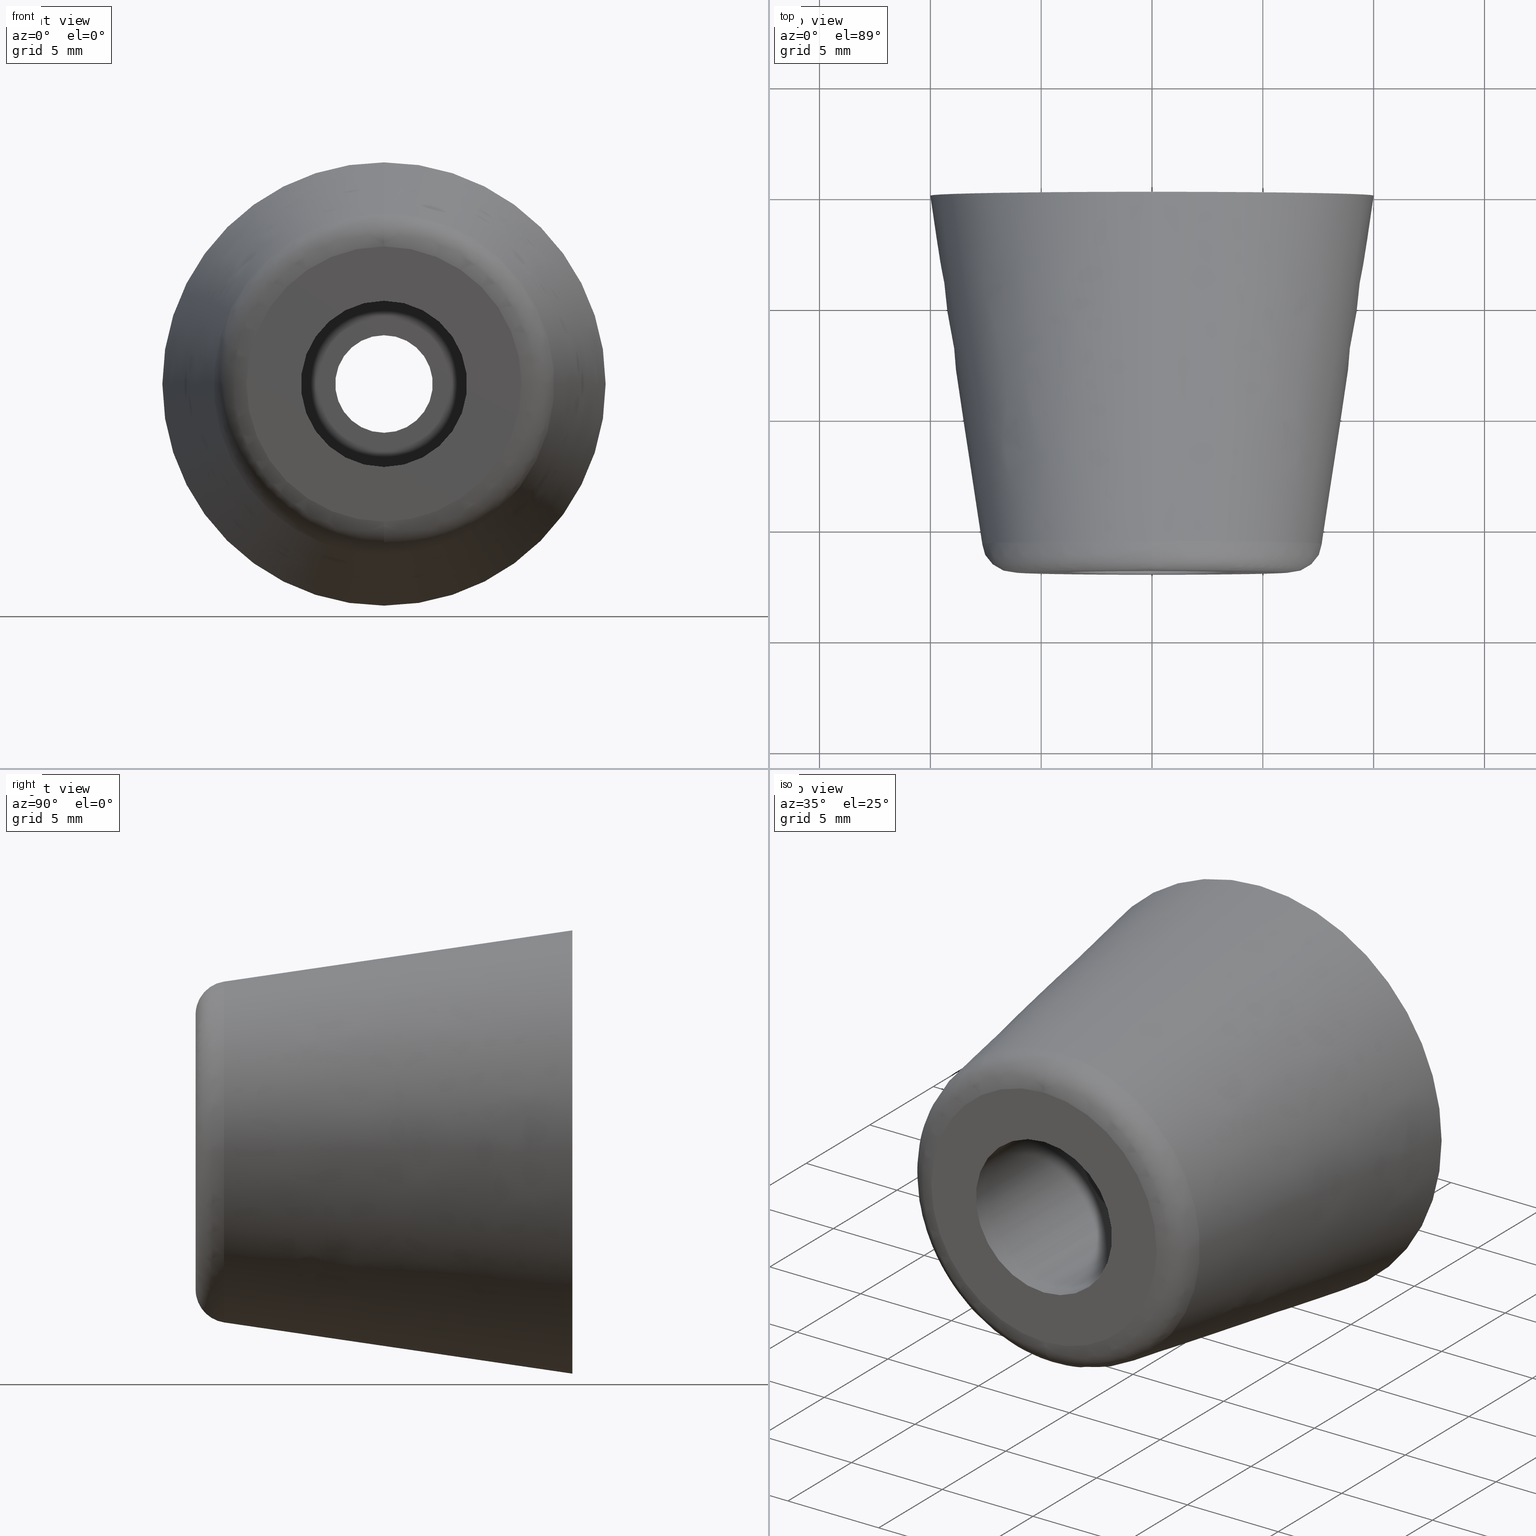
[diagram: canonical four-view strip — front | top / right | iso, engineering-drawing reading convention]
A machine part, canonical four-view strip (front | top / right | iso — engineering-drawing reading convention). The complete STEP part file that produces these views, byte-faithful:
ISO-10303-21;
HEADER;

FILE_DESCRIPTION( (''), '2;1');
FILE_NAME ('PC009.17420.TM_TP_201_27890.stp','2024-07-04T11:01:54',(''),(''),'spGate 19.8.4 (****-****-****-****)','','');

FILE_SCHEMA (('AUTOMOTIVE_DESIGN'));
ENDSEC;

DATA;
#10=(GEOMETRIC_REPRESENTATION_CONTEXT(3) GLOBAL_UNCERTAINTY_ASSIGNED_CONTEXT((#11)) GLOBAL_UNIT_ASSIGNED_CONTEXT((#12,#13,#14)) REPRESENTATION_CONTEXT('ID1','3D'));
#11=UNCERTAINTY_MEASURE_WITH_UNIT(LENGTH_MEASURE(0.01),#15,'DISTANCE_ACCURACY_VALUE','Maximum model space distance between geometric entities at asserted connectivities');
#12=(NAMED_UNIT(*) SI_UNIT($,.STERADIAN.) SOLID_ANGLE_UNIT());
#13=(CONVERSION_BASED_UNIT('DEGREE',#16) NAMED_UNIT(#17) PLANE_ANGLE_UNIT());
#14=(LENGTH_UNIT() NAMED_UNIT(*) SI_UNIT(.MILLI.,.METRE.));
#15=(LENGTH_UNIT() NAMED_UNIT(*) SI_UNIT(.MILLI.,.METRE.));
#16=PLANE_ANGLE_MEASURE_WITH_UNIT(PLANE_ANGLE_MEASURE(0.01745329252),#18);
#17=DIMENSIONAL_EXPONENTS(0.0,0.0,0.0,0.0,0.0,0.0,0.0);
#18=(NAMED_UNIT(*) PLANE_ANGLE_UNIT() SI_UNIT($,.RADIAN.));
#19=MANIFOLD_SOLID_BREP('TM_TP_201',#31);
#20=ADVANCED_BREP_SHAPE_REPRESENTATION('',(#19),#10);
#21=APPLICATION_CONTEXT('');
#22=APPLICATION_PROTOCOL_DEFINITION('International Standard','automotive_design',1999,#21);
#23=PRODUCT_DEFINITION_CONTEXT('',#21,'design');
#24=PRODUCT_CONTEXT('',#21,'mechanical');
#25=PRODUCT('','','',(#24));
#26=PRODUCT_DEFINITION_FORMATION_WITH_SPECIFIED_SOURCE('','',#25,.NOT_KNOWN.);
#27=PRODUCT_RELATED_PRODUCT_CATEGORY('tool','tool',(#25));
#28=PRODUCT_DEFINITION('','',#26,#23);
#29=PRODUCT_DEFINITION_SHAPE('','',#28);
#30=SHAPE_DEFINITION_REPRESENTATION(#29,#20);
#31=CLOSED_SHELL('',(#40,#41,#42,#43,#44,#45,#46,#47,#48,#49,#50));
#32=COLOUR_RGB('',0.00000000000E+00,0.00000000000E+00,0.00000000000E+00);
#33=FILL_AREA_STYLE_COLOUR('',#32);
#34=FILL_AREA_STYLE('',(#33));
#35=SURFACE_STYLE_FILL_AREA(#34);
#36=SURFACE_SIDE_STYLE('',(#35));
#37=SURFACE_STYLE_USAGE(.BOTH.,#36);
#38=PRESENTATION_STYLE_ASSIGNMENT((#37));
#39=STYLED_ITEM('',(#38),#19);
#40=ADVANCED_FACE('',(#52,#53),#51,.F.);
#41=ADVANCED_FACE('',(#63,#64),#62,.F.);
#42=ADVANCED_FACE('',(#74,#75),#73,.F.);
#43=ADVANCED_FACE('',(#85),#84,.F.);
#44=ADVANCED_FACE('',(#95),#94,.F.);
#45=ADVANCED_FACE('',(#105),#104,.F.);
#46=ADVANCED_FACE('',(#115),#114,.F.);
#47=ADVANCED_FACE('',(#125),#124,.T.);
#48=ADVANCED_FACE('',(#135),#134,.T.);
#49=ADVANCED_FACE('',(#145),#144,.T.);
#50=ADVANCED_FACE('',(#155),#154,.T.);
#51=PLANE('',#167);
#52=FACE_OUTER_BOUND('',#168,.T.);
#53=FACE_BOUND('',#169,.T.);
#54=COLOUR_RGB('',1.00000000000E+00,1.00000000000E+00,1.00000000000E+00);
#55=FILL_AREA_STYLE_COLOUR('',#54);
#56=FILL_AREA_STYLE('',(#55));
#57=SURFACE_STYLE_FILL_AREA(#56);
#58=SURFACE_SIDE_STYLE('',(#57));
#59=SURFACE_STYLE_USAGE(.BOTH.,#58);
#60=PRESENTATION_STYLE_ASSIGNMENT((#59));
#61=STYLED_ITEM('',(#60),#40);
#62=PLANE('',#173);
#63=FACE_OUTER_BOUND('',#174,.T.);
#64=FACE_BOUND('',#175,.T.);
#65=COLOUR_RGB('',1.00000000000E+00,1.00000000000E+00,1.00000000000E+00);
#66=FILL_AREA_STYLE_COLOUR('',#65);
#67=FILL_AREA_STYLE('',(#66));
#68=SURFACE_STYLE_FILL_AREA(#67);
#69=SURFACE_SIDE_STYLE('',(#68));
#70=SURFACE_STYLE_USAGE(.BOTH.,#69);
#71=PRESENTATION_STYLE_ASSIGNMENT((#70));
#72=STYLED_ITEM('',(#71),#41);
#73=PLANE('',#179);
#74=FACE_OUTER_BOUND('',#180,.T.);
#75=FACE_BOUND('',#181,.T.);
#76=COLOUR_RGB('',1.00000000000E+00,1.00000000000E+00,1.00000000000E+00);
#77=FILL_AREA_STYLE_COLOUR('',#76);
#78=FILL_AREA_STYLE('',(#77));
#79=SURFACE_STYLE_FILL_AREA(#78);
#80=SURFACE_SIDE_STYLE('',(#79));
#81=SURFACE_STYLE_USAGE(.BOTH.,#80);
#82=PRESENTATION_STYLE_ASSIGNMENT((#81));
#83=STYLED_ITEM('',(#82),#42);
#84=CYLINDRICAL_SURFACE('',#185,2.20000000000E+00);
#85=FACE_OUTER_BOUND('',#186,.T.);
#86=COLOUR_RGB('',1.00000000000E+00,1.00000000000E+00,1.00000000000E+00);
#87=FILL_AREA_STYLE_COLOUR('',#86);
#88=FILL_AREA_STYLE('',(#87));
#89=SURFACE_STYLE_FILL_AREA(#88);
#90=SURFACE_SIDE_STYLE('',(#89));
#91=SURFACE_STYLE_USAGE(.BOTH.,#90);
#92=PRESENTATION_STYLE_ASSIGNMENT((#91));
#93=STYLED_ITEM('',(#92),#43);
#94=CYLINDRICAL_SURFACE('',#190,2.20000000000E+00);
#95=FACE_OUTER_BOUND('',#191,.T.);
#96=COLOUR_RGB('',1.00000000000E+00,1.00000000000E+00,1.00000000000E+00);
#97=FILL_AREA_STYLE_COLOUR('',#96);
#98=FILL_AREA_STYLE('',(#97));
#99=SURFACE_STYLE_FILL_AREA(#98);
#100=SURFACE_SIDE_STYLE('',(#99));
#101=SURFACE_STYLE_USAGE(.BOTH.,#100);
#102=PRESENTATION_STYLE_ASSIGNMENT((#101));
#103=STYLED_ITEM('',(#102),#44);
#104=CYLINDRICAL_SURFACE('',#195,3.75000000000E+00);
#105=FACE_OUTER_BOUND('',#196,.T.);
#106=COLOUR_RGB('',1.00000000000E+00,1.00000000000E+00,1.00000000000E+00);
#107=FILL_AREA_STYLE_COLOUR('',#106);
#108=FILL_AREA_STYLE('',(#107));
#109=SURFACE_STYLE_FILL_AREA(#108);
#110=SURFACE_SIDE_STYLE('',(#109));
#111=SURFACE_STYLE_USAGE(.BOTH.,#110);
#112=PRESENTATION_STYLE_ASSIGNMENT((#111));
#113=STYLED_ITEM('',(#112),#45);
#114=CYLINDRICAL_SURFACE('',#200,3.75000000000E+00);
#115=FACE_OUTER_BOUND('',#201,.T.);
#116=COLOUR_RGB('',1.00000000000E+00,1.00000000000E+00,1.00000000000E+00);
#117=FILL_AREA_STYLE_COLOUR('',#116);
#118=FILL_AREA_STYLE('',(#117));
#119=SURFACE_STYLE_FILL_AREA(#118);
#120=SURFACE_SIDE_STYLE('',(#119));
#121=SURFACE_STYLE_USAGE(.BOTH.,#120);
#122=PRESENTATION_STYLE_ASSIGNMENT((#121));
#123=STYLED_ITEM('',(#122),#46);
#124=( BOUNDED_SURFACE() B_SPLINE_SURFACE( 2,2,((#202,#203,#204,#205,#206),(#207,#208,#209,#210,#211),(#212,#213,#214,#215,#216),(#217,#218,#219,#220,#221),(#222,#223,#224,#225,#226)), .UNSPECIFIED.,.F.,.F.,.F.) B_SPLINE_SURFACE_WITH_KNOTS((3,2,3),(3,2,3),(0.00000000000E+00,5.00000000000E-01,1.00000000000E+00),(0.00000000000E+00,5.00000000000E-01,1.00000000000E+00), .UNSPECIFIED. ) GEOMETRIC_REPRESENTATION_ITEM() RATIONAL_B_SPLINE_SURFACE(((1.00000000000E+00,7.56800498974E-01,1.00000000000E+00,7.56800498974E-01,1.00000000000E+00),(7.07106781187E-01,5.35138764830E-01,7.07106781187E-01,5.35138764830E-01,7.07106781187E-01),(1.00000000000E+00,7.56800498974E-01,1.00000000000E+00,7.56800498974E-01,1.00000000000E+00),(7.07106781187E-01,5.35138764830E-01,7.07106781187E-01,5.35138764830E-01,7.07106781187E-01),(1.00000000000E+00,7.56800498974E-01,1.00000000000E+00,7.56800498974E-01,1.00000000000E+00))) REPRESENTATION_ITEM('') SURFACE() );
#125=FACE_OUTER_BOUND('',#227,.T.);
#126=COLOUR_RGB('',1.00000000000E+00,1.00000000000E+00,1.00000000000E+00);
#127=FILL_AREA_STYLE_COLOUR('',#126);
#128=FILL_AREA_STYLE('',(#127));
#129=SURFACE_STYLE_FILL_AREA(#128);
#130=SURFACE_SIDE_STYLE('',(#129));
#131=SURFACE_STYLE_USAGE(.BOTH.,#130);
#132=PRESENTATION_STYLE_ASSIGNMENT((#131));
#133=STYLED_ITEM('',(#132),#47);
#134=( BOUNDED_SURFACE() B_SPLINE_SURFACE( 2,2,((#228,#229,#230,#231,#232),(#233,#234,#235,#236,#237),(#238,#239,#240,#241,#242),(#243,#244,#245,#246,#247),(#248,#249,#250,#251,#252)), .UNSPECIFIED.,.F.,.F.,.F.) B_SPLINE_SURFACE_WITH_KNOTS((3,2,3),(3,2,3),(0.00000000000E+00,5.00000000000E-01,1.00000000000E+00),(0.00000000000E+00,5.00000000000E-01,1.00000000000E+00), .UNSPECIFIED. ) GEOMETRIC_REPRESENTATION_ITEM() RATIONAL_B_SPLINE_SURFACE(((1.00000000000E+00,7.56800498974E-01,1.00000000000E+00,7.56800498974E-01,1.00000000000E+00),(7.07106781187E-01,5.35138764830E-01,7.07106781187E-01,5.35138764830E-01,7.07106781187E-01),(1.00000000000E+00,7.56800498974E-01,1.00000000000E+00,7.56800498974E-01,1.00000000000E+00),(7.07106781187E-01,5.35138764830E-01,7.07106781187E-01,5.35138764830E-01,7.07106781187E-01),(1.00000000000E+00,7.56800498974E-01,1.00000000000E+00,7.56800498974E-01,1.00000000000E+00))) REPRESENTATION_ITEM('') SURFACE() );
#135=FACE_OUTER_BOUND('',#253,.T.);
#136=COLOUR_RGB('',1.00000000000E+00,1.00000000000E+00,1.00000000000E+00);
#137=FILL_AREA_STYLE_COLOUR('',#136);
#138=FILL_AREA_STYLE('',(#137));
#139=SURFACE_STYLE_FILL_AREA(#138);
#140=SURFACE_SIDE_STYLE('',(#139));
#141=SURFACE_STYLE_USAGE(.BOTH.,#140);
#142=PRESENTATION_STYLE_ASSIGNMENT((#141));
#143=STYLED_ITEM('',(#142),#48);
#144=( BOUNDED_SURFACE() B_SPLINE_SURFACE( 2,1,((#254,#255),(#256,#257),(#258,#259),(#260,#261),(#262,#263)), .UNSPECIFIED.,.F.,.F.,.F.) B_SPLINE_SURFACE_WITH_KNOTS((3,2,3),(2,2),(0.00000000000E+00,5.00000000000E-01,1.00000000000E+00),(0.00000000000E+00,1.00000000000E+00), .UNSPECIFIED. ) GEOMETRIC_REPRESENTATION_ITEM() RATIONAL_B_SPLINE_SURFACE(((1.00000000000E+00,1.00000000000E+00),(7.07106781187E-01,7.07106781187E-01),(1.00000000000E+00,1.00000000000E+00),(7.07106781187E-01,7.07106781187E-01),(1.00000000000E+00,1.00000000000E+00))) REPRESENTATION_ITEM('') SURFACE() );
#145=FACE_OUTER_BOUND('',#264,.T.);
#146=COLOUR_RGB('',1.00000000000E+00,1.00000000000E+00,1.00000000000E+00);
#147=FILL_AREA_STYLE_COLOUR('',#146);
#148=FILL_AREA_STYLE('',(#147));
#149=SURFACE_STYLE_FILL_AREA(#148);
#150=SURFACE_SIDE_STYLE('',(#149));
#151=SURFACE_STYLE_USAGE(.BOTH.,#150);
#152=PRESENTATION_STYLE_ASSIGNMENT((#151));
#153=STYLED_ITEM('',(#152),#49);
#154=( BOUNDED_SURFACE() B_SPLINE_SURFACE( 2,1,((#265,#266),(#267,#268),(#269,#270),(#271,#272),(#273,#274)), .UNSPECIFIED.,.F.,.F.,.F.) B_SPLINE_SURFACE_WITH_KNOTS((3,2,3),(2,2),(0.00000000000E+00,5.00000000000E-01,1.00000000000E+00),(0.00000000000E+00,1.00000000000E+00), .UNSPECIFIED. ) GEOMETRIC_REPRESENTATION_ITEM() RATIONAL_B_SPLINE_SURFACE(((1.00000000000E+00,1.00000000000E+00),(7.07106781187E-01,7.07106781187E-01),(1.00000000000E+00,1.00000000000E+00),(7.07106781187E-01,7.07106781187E-01),(1.00000000000E+00,1.00000000000E+00))) REPRESENTATION_ITEM('') SURFACE() );
#155=FACE_OUTER_BOUND('',#275,.T.);
#156=COLOUR_RGB('',1.00000000000E+00,1.00000000000E+00,1.00000000000E+00);
#157=FILL_AREA_STYLE_COLOUR('',#156);
#158=FILL_AREA_STYLE('',(#157));
#159=SURFACE_STYLE_FILL_AREA(#158);
#160=SURFACE_SIDE_STYLE('',(#159));
#161=SURFACE_STYLE_USAGE(.BOTH.,#160);
#162=PRESENTATION_STYLE_ASSIGNMENT((#161));
#163=STYLED_ITEM('',(#162),#50);
#164=CARTESIAN_POINT('',(-7.79422863406E+00,-9.00000000000E+00,-4.87500000000E+00));
#165=DIRECTION('',(0.00000000000E+00,1.00000000000E+00,0.00000000000E+00));
#166=DIRECTION('',(0.00000000000E+00,-0.00000000000E+00,1.00000000000E+00));
#167=AXIS2_PLACEMENT_3D('',#164,#165,#166);
#168=EDGE_LOOP('',(#276,#277));
#169=EDGE_LOOP('',(#278,#279));
#170=CARTESIAN_POINT('',(-1.28957181124E+01,-1.70000000000E+01,-8.06579185053E+00));
#171=DIRECTION('',(0.00000000000E+00,1.00000000000E+00,0.00000000000E+00));
#172=DIRECTION('',(0.00000000000E+00,-0.00000000000E+00,1.00000000000E+00));
#173=AXIS2_PLACEMENT_3D('',#170,#171,#172);
#174=EDGE_LOOP('',(#280,#281));
#175=EDGE_LOOP('',(#282,#283));
#176=CARTESIAN_POINT('',(-2.07846096908E+01,0.00000000000E+00,2.30000000000E+01));
#177=DIRECTION('',(0.00000000000E+00,-1.00000000000E+00,-0.00000000000E+00));
#178=DIRECTION('',(0.00000000000E+00,0.00000000000E+00,-1.00000000000E+00));
#179=AXIS2_PLACEMENT_3D('',#176,#177,#178);
#180=EDGE_LOOP('',(#284,#285));
#181=EDGE_LOOP('',(#286,#287));
#182=CARTESIAN_POINT('',(1.06581410364E-14,0.00000000000E+00,0.00000000000E+00));
#183=DIRECTION('',(-0.00000000000E+00,1.00000000000E+00,0.00000000000E+00));
#184=DIRECTION('',(-0.00000000000E+00,-0.00000000000E+00,1.00000000000E+00));
#185=AXIS2_PLACEMENT_3D('',#182,#183,#184);
#186=EDGE_LOOP('',(#288,#289,#290,#291));
#187=CARTESIAN_POINT('',(1.06581410364E-14,0.00000000000E+00,0.00000000000E+00));
#188=DIRECTION('',(-0.00000000000E+00,1.00000000000E+00,0.00000000000E+00));
#189=DIRECTION('',(-0.00000000000E+00,-0.00000000000E+00,1.00000000000E+00));
#190=AXIS2_PLACEMENT_3D('',#187,#188,#189);
#191=EDGE_LOOP('',(#292,#293,#294,#295));
#192=CARTESIAN_POINT('',(1.06581410364E-14,0.00000000000E+00,0.00000000000E+00));
#193=DIRECTION('',(-0.00000000000E+00,1.00000000000E+00,0.00000000000E+00));
#194=DIRECTION('',(-0.00000000000E+00,-0.00000000000E+00,1.00000000000E+00));
#195=AXIS2_PLACEMENT_3D('',#192,#193,#194);
#196=EDGE_LOOP('',(#296,#297,#298,#299));
#197=CARTESIAN_POINT('',(1.06581410364E-14,0.00000000000E+00,0.00000000000E+00));
#198=DIRECTION('',(-0.00000000000E+00,1.00000000000E+00,0.00000000000E+00));
#199=DIRECTION('',(-0.00000000000E+00,-0.00000000000E+00,1.00000000000E+00));
#200=AXIS2_PLACEMENT_3D('',#197,#198,#199);
#201=EDGE_LOOP('',(#300,#301,#302,#303));
#202=CARTESIAN_POINT('',(9.46680299883E-15,-1.57182409857E+01,7.68849397268E+00));
#203=CARTESIAN_POINT('',(9.48988609049E-15,-1.70000000000E+01,7.50000000000E+00));
#204=CARTESIAN_POINT('',(9.64853932134E-15,-1.70000000000E+01,6.20445526964E+00));
#205=CARTESIAN_POINT('',(9.80719255219E-15,-1.70000000000E+01,4.90891053928E+00));
#206=CARTESIAN_POINT('',(9.83027564385E-15,-1.57182409857E+01,4.72041656659E+00));
#207=CARTESIAN_POINT('',(-7.68849397268E+00,-1.57182409857E+01,7.68849397268E+00));
#208=CARTESIAN_POINT('',(-7.50000000000E+00,-1.70000000000E+01,7.50000000000E+00));
#209=CARTESIAN_POINT('',(-6.20445526964E+00,-1.70000000000E+01,6.20445526964E+00));
#210=CARTESIAN_POINT('',(-4.90891053928E+00,-1.70000000000E+01,4.90891053928E+00));
#211=CARTESIAN_POINT('',(-4.72041656659E+00,-1.57182409857E+01,4.72041656659E+00));
#212=CARTESIAN_POINT('',(-7.68849397268E+00,-1.57182409857E+01,-4.70753380332E-16));
#213=CARTESIAN_POINT('',(-7.50000000000E+00,-1.70000000000E+01,-4.59212215687E-16));
#214=CARTESIAN_POINT('',(-6.20445526964E+00,-1.70000000000E+01,-3.79888220200E-16));
#215=CARTESIAN_POINT('',(-4.90891053928E+00,-1.70000000000E+01,-3.00564224713E-16));
#216=CARTESIAN_POINT('',(-4.72041656659E+00,-1.57182409857E+01,-2.89023060068E-16));
#217=CARTESIAN_POINT('',(-7.68849397268E+00,-1.57182409857E+01,-7.68849397268E+00));
#218=CARTESIAN_POINT('',(-7.50000000000E+00,-1.70000000000E+01,-7.50000000000E+00));
#219=CARTESIAN_POINT('',(-6.20445526964E+00,-1.70000000000E+01,-6.20445526964E+00));
#220=CARTESIAN_POINT('',(-4.90891053928E+00,-1.70000000000E+01,-4.90891053928E+00));
#221=CARTESIAN_POINT('',(-4.72041656659E+00,-1.57182409857E+01,-4.72041656659E+00));
#222=CARTESIAN_POINT('',(1.04083097595E-14,-1.57182409857E+01,-7.68849397268E+00));
#223=CARTESIAN_POINT('',(1.04083105219E-14,-1.70000000000E+01,-7.50000000000E+00));
#224=CARTESIAN_POINT('',(1.04083157617E-14,-1.70000000000E+01,-6.20445526964E+00));
#225=CARTESIAN_POINT('',(1.04083210016E-14,-1.70000000000E+01,-4.90891053928E+00));
#226=CARTESIAN_POINT('',(1.04083217640E-14,-1.57182409857E+01,-4.72041656659E+00));
#227=EDGE_LOOP('',(#304,#305,#306,#307));
#228=CARTESIAN_POINT('',(1.04083097595E-14,-1.57182409857E+01,-7.68849397268E+00));
#229=CARTESIAN_POINT('',(1.04083105219E-14,-1.70000000000E+01,-7.50000000000E+00));
#230=CARTESIAN_POINT('',(1.04083157617E-14,-1.70000000000E+01,-6.20445526964E+00));
#231=CARTESIAN_POINT('',(1.04083210016E-14,-1.70000000000E+01,-4.90891053928E+00));
#232=CARTESIAN_POINT('',(1.04083217640E-14,-1.57182409857E+01,-4.72041656659E+00));
#233=CARTESIAN_POINT('',(7.68849397268E+00,-1.57182409857E+01,-7.68849397268E+00));
#234=CARTESIAN_POINT('',(7.50000000000E+00,-1.70000000000E+01,-7.50000000000E+00));
#235=CARTESIAN_POINT('',(6.20445526964E+00,-1.70000000000E+01,-6.20445526964E+00));
#236=CARTESIAN_POINT('',(4.90891053928E+00,-1.70000000000E+01,-4.90891053928E+00));
#237=CARTESIAN_POINT('',(4.72041656659E+00,-1.57182409857E+01,-4.72041656659E+00));
#238=CARTESIAN_POINT('',(7.68849397268E+00,-1.57182409857E+01,-4.70815573059E-16));
#239=CARTESIAN_POINT('',(7.50000000000E+00,-1.70000000000E+01,-4.59272883674E-16));
#240=CARTESIAN_POINT('',(6.20445526964E+00,-1.70000000000E+01,-3.79938408442E-16));
#241=CARTESIAN_POINT('',(4.90891053928E+00,-1.70000000000E+01,-3.00603933209E-16));
#242=CARTESIAN_POINT('',(4.72041656659E+00,-1.57182409857E+01,-2.89061243824E-16));
#243=CARTESIAN_POINT('',(7.68849397268E+00,-1.57182409857E+01,7.68849397268E+00));
#244=CARTESIAN_POINT('',(7.50000000000E+00,-1.70000000000E+01,7.50000000000E+00));
#245=CARTESIAN_POINT('',(6.20445526964E+00,-1.70000000000E+01,6.20445526964E+00));
#246=CARTESIAN_POINT('',(4.90891053928E+00,-1.70000000000E+01,4.90891053928E+00));
#247=CARTESIAN_POINT('',(4.72041656659E+00,-1.57182409857E+01,4.72041656659E+00));
#248=CARTESIAN_POINT('',(1.13499409056E-14,-1.57182409857E+01,7.68849397268E+00));
#249=CARTESIAN_POINT('',(1.13268562892E-14,-1.70000000000E+01,7.50000000000E+00));
#250=CARTESIAN_POINT('',(1.11681925786E-14,-1.70000000000E+01,6.20445526964E+00));
#251=CARTESIAN_POINT('',(1.10095288680E-14,-1.70000000000E+01,4.90891053928E+00));
#252=CARTESIAN_POINT('',(1.09864442516E-14,-1.57182409857E+01,4.72041656659E+00));
#253=EDGE_LOOP('',(#308,#309,#310,#311));
#254=CARTESIAN_POINT('',(8.77500312962E-15,-1.57182409857E+01,-7.68849397268E+00));
#255=CARTESIAN_POINT('',(8.20884743811E-15,0.00000000000E+00,-1.00000000000E+01));
#256=CARTESIAN_POINT('',(-7.68849397268E+00,-1.57182409857E+01,-7.68849397268E+00));
#257=CARTESIAN_POINT('',(-1.00000000000E+01,0.00000000000E+00,-1.00000000000E+01));
#258=CARTESIAN_POINT('',(-7.68849397268E+00,-1.57182409857E+01,1.41235343009E-15));
#259=CARTESIAN_POINT('',(-1.00000000000E+01,0.00000000000E+00,1.83697019872E-15));
#260=CARTESIAN_POINT('',(-7.68849397268E+00,-1.57182409857E+01,7.68849397268E+00));
#261=CARTESIAN_POINT('',(-1.00000000000E+01,0.00000000000E+00,1.00000000000E+01));
#262=CARTESIAN_POINT('',(1.15997099898E-14,-1.57182409857E+01,7.68849397268E+00));
#263=CARTESIAN_POINT('',(1.18827878355E-14,0.00000000000E+00,1.00000000000E+01));
#264=EDGE_LOOP('',(#312,#313,#314,#315));
#265=CARTESIAN_POINT('',(1.15997099898E-14,-1.57182409857E+01,7.68849397268E+00));
#266=CARTESIAN_POINT('',(1.18827878355E-14,0.00000000000E+00,1.00000000000E+01));
#267=CARTESIAN_POINT('',(7.68849397268E+00,-1.57182409857E+01,7.68849397268E+00));
#268=CARTESIAN_POINT('',(1.00000000000E+01,0.00000000000E+00,1.00000000000E+01));
#269=CARTESIAN_POINT('',(7.68849397268E+00,-1.57182409857E+01,-4.70784476696E-16));
#270=CARTESIAN_POINT('',(1.00000000000E+01,0.00000000000E+00,-6.12323399574E-16));
#271=CARTESIAN_POINT('',(7.68849397268E+00,-1.57182409857E+01,-7.68849397268E+00));
#272=CARTESIAN_POINT('',(1.00000000000E+01,0.00000000000E+00,-1.00000000000E+01));
#273=CARTESIAN_POINT('',(1.06581410364E-14,-1.57182409857E+01,-7.68849397268E+00));
#274=CARTESIAN_POINT('',(1.06581410364E-14,0.00000000000E+00,-1.00000000000E+01));
#275=EDGE_LOOP('',(#316,#317,#318,#319));
#276=ORIENTED_EDGE('',*,*,#320,.T.);
#277=ORIENTED_EDGE('',*,*,#321,.T.);
#278=ORIENTED_EDGE('',*,*,#322,.F.);
#279=ORIENTED_EDGE('',*,*,#323,.F.);
#280=ORIENTED_EDGE('',*,*,#324,.T.);
#281=ORIENTED_EDGE('',*,*,#325,.T.);
#282=ORIENTED_EDGE('',*,*,#326,.F.);
#283=ORIENTED_EDGE('',*,*,#327,.F.);
#284=ORIENTED_EDGE('',*,*,#328,.F.);
#285=ORIENTED_EDGE('',*,*,#329,.F.);
#286=ORIENTED_EDGE('',*,*,#330,.T.);
#287=ORIENTED_EDGE('',*,*,#331,.T.);
#288=ORIENTED_EDGE('',*,*,#323,.T.);
#289=ORIENTED_EDGE('',*,*,#332,.T.);
#290=ORIENTED_EDGE('',*,*,#330,.F.);
#291=ORIENTED_EDGE('',*,*,#333,.F.);
#292=ORIENTED_EDGE('',*,*,#331,.F.);
#293=ORIENTED_EDGE('',*,*,#332,.F.);
#294=ORIENTED_EDGE('',*,*,#322,.T.);
#295=ORIENTED_EDGE('',*,*,#333,.T.);
#296=ORIENTED_EDGE('',*,*,#327,.T.);
#297=ORIENTED_EDGE('',*,*,#334,.T.);
#298=ORIENTED_EDGE('',*,*,#320,.F.);
#299=ORIENTED_EDGE('',*,*,#335,.F.);
#300=ORIENTED_EDGE('',*,*,#321,.F.);
#301=ORIENTED_EDGE('',*,*,#334,.F.);
#302=ORIENTED_EDGE('',*,*,#326,.T.);
#303=ORIENTED_EDGE('',*,*,#335,.T.);
#304=ORIENTED_EDGE('',*,*,#325,.F.);
#305=ORIENTED_EDGE('',*,*,#336,.F.);
#306=ORIENTED_EDGE('',*,*,#337,.T.);
#307=ORIENTED_EDGE('',*,*,#338,.T.);
#308=ORIENTED_EDGE('',*,*,#339,.T.);
#309=ORIENTED_EDGE('',*,*,#336,.T.);
#310=ORIENTED_EDGE('',*,*,#324,.F.);
#311=ORIENTED_EDGE('',*,*,#338,.F.);
#312=ORIENTED_EDGE('',*,*,#328,.T.);
#313=ORIENTED_EDGE('',*,*,#340,.F.);
#314=ORIENTED_EDGE('',*,*,#337,.F.);
#315=ORIENTED_EDGE('',*,*,#341,.T.);
#316=ORIENTED_EDGE('',*,*,#339,.F.);
#317=ORIENTED_EDGE('',*,*,#340,.T.);
#318=ORIENTED_EDGE('',*,*,#329,.T.);
#319=ORIENTED_EDGE('',*,*,#341,.F.);
#320=EDGE_CURVE('',#342,#343,#344,.T.);
#321=EDGE_CURVE('',#343,#342,#350,.T.);
#322=EDGE_CURVE('',#356,#357,#358,.T.);
#323=EDGE_CURVE('',#357,#356,#364,.T.);
#324=EDGE_CURVE('',#370,#371,#372,.T.);
#325=EDGE_CURVE('',#371,#370,#378,.T.);
#326=EDGE_CURVE('',#384,#385,#386,.T.);
#327=EDGE_CURVE('',#385,#384,#392,.T.);
#328=EDGE_CURVE('',#398,#399,#400,.T.);
#329=EDGE_CURVE('',#399,#398,#406,.T.);
#330=EDGE_CURVE('',#412,#413,#414,.T.);
#331=EDGE_CURVE('',#413,#412,#420,.T.);
#332=EDGE_CURVE('',#356,#413,#426,.T.);
#333=EDGE_CURVE('',#357,#412,#432,.T.);
#334=EDGE_CURVE('',#384,#343,#438,.T.);
#335=EDGE_CURVE('',#385,#342,#444,.T.);
#336=EDGE_CURVE('',#450,#371,#451,.T.);
#337=EDGE_CURVE('',#450,#457,#458,.T.);
#338=EDGE_CURVE('',#457,#370,#464,.T.);
#339=EDGE_CURVE('',#457,#450,#470,.T.);
#340=EDGE_CURVE('',#457,#399,#476,.T.);
#341=EDGE_CURVE('',#450,#398,#482,.T.);
#342=VERTEX_POINT('',#488);
#343=VERTEX_POINT('',#489);
#344=CIRCLE('',#493,3.75000000000E+00);
#345=COLOUR_RGB('',1.00000000000E+00,1.00000000000E+00,1.00000000000E+00);
#346=DRAUGHTING_PRE_DEFINED_CURVE_FONT('continuous');
#347=CURVE_STYLE( '',#346, POSITIVE_LENGTH_MEASURE(1.00000000000E-06),#345);
#348=PRESENTATION_STYLE_ASSIGNMENT((#347));
#349=STYLED_ITEM('',(#348),#320);
#350=CIRCLE('',#497,3.75000000000E+00);
#351=COLOUR_RGB('',1.00000000000E+00,1.00000000000E+00,1.00000000000E+00);
#352=DRAUGHTING_PRE_DEFINED_CURVE_FONT('continuous');
#353=CURVE_STYLE( '',#352, POSITIVE_LENGTH_MEASURE(1.00000000000E-06),#351);
#354=PRESENTATION_STYLE_ASSIGNMENT((#353));
#355=STYLED_ITEM('',(#354),#321);
#356=VERTEX_POINT('',#498);
#357=VERTEX_POINT('',#499);
#358=CIRCLE('',#503,2.20000000000E+00);
#359=COLOUR_RGB('',1.00000000000E+00,1.00000000000E+00,1.00000000000E+00);
#360=DRAUGHTING_PRE_DEFINED_CURVE_FONT('continuous');
#361=CURVE_STYLE( '',#360, POSITIVE_LENGTH_MEASURE(1.00000000000E-06),#359);
#362=PRESENTATION_STYLE_ASSIGNMENT((#361));
#363=STYLED_ITEM('',(#362),#322);
#364=CIRCLE('',#507,2.20000000000E+00);
#365=COLOUR_RGB('',1.00000000000E+00,1.00000000000E+00,1.00000000000E+00);
#366=DRAUGHTING_PRE_DEFINED_CURVE_FONT('continuous');
#367=CURVE_STYLE( '',#366, POSITIVE_LENGTH_MEASURE(1.00000000000E-06),#365);
#368=PRESENTATION_STYLE_ASSIGNMENT((#367));
#369=STYLED_ITEM('',(#368),#323);
#370=VERTEX_POINT('',#508);
#371=VERTEX_POINT('',#509);
#372=CIRCLE('',#513,6.20445526964E+00);
#373=COLOUR_RGB('',1.00000000000E+00,1.00000000000E+00,1.00000000000E+00);
#374=DRAUGHTING_PRE_DEFINED_CURVE_FONT('continuous');
#375=CURVE_STYLE( '',#374, POSITIVE_LENGTH_MEASURE(1.00000000000E-06),#373);
#376=PRESENTATION_STYLE_ASSIGNMENT((#375));
#377=STYLED_ITEM('',(#376),#324);
#378=CIRCLE('',#517,6.20445526964E+00);
#379=COLOUR_RGB('',1.00000000000E+00,1.00000000000E+00,1.00000000000E+00);
#380=DRAUGHTING_PRE_DEFINED_CURVE_FONT('continuous');
#381=CURVE_STYLE( '',#380, POSITIVE_LENGTH_MEASURE(1.00000000000E-06),#379);
#382=PRESENTATION_STYLE_ASSIGNMENT((#381));
#383=STYLED_ITEM('',(#382),#325);
#384=VERTEX_POINT('',#518);
#385=VERTEX_POINT('',#519);
#386=CIRCLE('',#523,3.75000000000E+00);
#387=COLOUR_RGB('',1.00000000000E+00,1.00000000000E+00,1.00000000000E+00);
#388=DRAUGHTING_PRE_DEFINED_CURVE_FONT('continuous');
#389=CURVE_STYLE( '',#388, POSITIVE_LENGTH_MEASURE(1.00000000000E-06),#387);
#390=PRESENTATION_STYLE_ASSIGNMENT((#389));
#391=STYLED_ITEM('',(#390),#326);
#392=CIRCLE('',#527,3.75000000000E+00);
#393=COLOUR_RGB('',1.00000000000E+00,1.00000000000E+00,1.00000000000E+00);
#394=DRAUGHTING_PRE_DEFINED_CURVE_FONT('continuous');
#395=CURVE_STYLE( '',#394, POSITIVE_LENGTH_MEASURE(1.00000000000E-06),#393);
#396=PRESENTATION_STYLE_ASSIGNMENT((#395));
#397=STYLED_ITEM('',(#396),#327);
#398=VERTEX_POINT('',#528);
#399=VERTEX_POINT('',#529);
#400=CIRCLE('',#533,1.00000000000E+01);
#401=COLOUR_RGB('',1.00000000000E+00,1.00000000000E+00,1.00000000000E+00);
#402=DRAUGHTING_PRE_DEFINED_CURVE_FONT('continuous');
#403=CURVE_STYLE( '',#402, POSITIVE_LENGTH_MEASURE(1.00000000000E-06),#401);
#404=PRESENTATION_STYLE_ASSIGNMENT((#403));
#405=STYLED_ITEM('',(#404),#328);
#406=CIRCLE('',#537,1.00000000000E+01);
#407=COLOUR_RGB('',1.00000000000E+00,1.00000000000E+00,1.00000000000E+00);
#408=DRAUGHTING_PRE_DEFINED_CURVE_FONT('continuous');
#409=CURVE_STYLE( '',#408, POSITIVE_LENGTH_MEASURE(1.00000000000E-06),#407);
#410=PRESENTATION_STYLE_ASSIGNMENT((#409));
#411=STYLED_ITEM('',(#410),#329);
#412=VERTEX_POINT('',#538);
#413=VERTEX_POINT('',#539);
#414=CIRCLE('',#543,2.20000000000E+00);
#415=COLOUR_RGB('',1.00000000000E+00,1.00000000000E+00,1.00000000000E+00);
#416=DRAUGHTING_PRE_DEFINED_CURVE_FONT('continuous');
#417=CURVE_STYLE( '',#416, POSITIVE_LENGTH_MEASURE(1.00000000000E-06),#415);
#418=PRESENTATION_STYLE_ASSIGNMENT((#417));
#419=STYLED_ITEM('',(#418),#330);
#420=CIRCLE('',#547,2.20000000000E+00);
#421=COLOUR_RGB('',1.00000000000E+00,1.00000000000E+00,1.00000000000E+00);
#422=DRAUGHTING_PRE_DEFINED_CURVE_FONT('continuous');
#423=CURVE_STYLE( '',#422, POSITIVE_LENGTH_MEASURE(1.00000000000E-06),#421);
#424=PRESENTATION_STYLE_ASSIGNMENT((#423));
#425=STYLED_ITEM('',(#424),#331);
#426=(BOUNDED_CURVE() B_SPLINE_CURVE(1,(#548,#549),.UNSPECIFIED.,.F.,.F.) B_SPLINE_CURVE_WITH_KNOTS((2,2),(8.33333343261E-02,9.16666664274E-01),.UNSPECIFIED.) CURVE() GEOMETRIC_REPRESENTATION_ITEM() RATIONAL_B_SPLINE_CURVE((1.00000000000E+00,1.00000000000E+00)) REPRESENTATION_ITEM('') );
#427=COLOUR_RGB('',1.00000000000E+00,1.00000000000E+00,1.00000000000E+00);
#428=DRAUGHTING_PRE_DEFINED_CURVE_FONT('continuous');
#429=CURVE_STYLE( '',#428, POSITIVE_LENGTH_MEASURE(1.00000000000E-06),#427);
#430=PRESENTATION_STYLE_ASSIGNMENT((#429));
#431=STYLED_ITEM('',(#430),#332);
#432=(BOUNDED_CURVE() B_SPLINE_CURVE(1,(#550,#551),.UNSPECIFIED.,.F.,.F.) B_SPLINE_CURVE_WITH_KNOTS((2,2),(8.33333333333E-02,9.16666666667E-01),.UNSPECIFIED.) CURVE() GEOMETRIC_REPRESENTATION_ITEM() RATIONAL_B_SPLINE_CURVE((7.50000000000E-01,7.50000000000E-01)) REPRESENTATION_ITEM('') );
#433=COLOUR_RGB('',1.00000000000E+00,1.00000000000E+00,1.00000000000E+00);
#434=DRAUGHTING_PRE_DEFINED_CURVE_FONT('continuous');
#435=CURVE_STYLE( '',#434, POSITIVE_LENGTH_MEASURE(1.00000000000E-06),#433);
#436=PRESENTATION_STYLE_ASSIGNMENT((#435));
#437=STYLED_ITEM('',(#436),#333);
#438=(BOUNDED_CURVE() B_SPLINE_CURVE(1,(#552,#553),.UNSPECIFIED.,.F.,.F.) B_SPLINE_CURVE_WITH_KNOTS((2,2),(8.33333366442E-02,9.16666667899E-01),.UNSPECIFIED.) CURVE() GEOMETRIC_REPRESENTATION_ITEM() RATIONAL_B_SPLINE_CURVE((1.00000000000E+00,1.00000000000E+00)) REPRESENTATION_ITEM('') );
#439=COLOUR_RGB('',1.00000000000E+00,1.00000000000E+00,1.00000000000E+00);
#440=DRAUGHTING_PRE_DEFINED_CURVE_FONT('continuous');
#441=CURVE_STYLE( '',#440, POSITIVE_LENGTH_MEASURE(1.00000000000E-06),#439);
#442=PRESENTATION_STYLE_ASSIGNMENT((#441));
#443=STYLED_ITEM('',(#442),#334);
#444=(BOUNDED_CURVE() B_SPLINE_CURVE(1,(#554,#555),.UNSPECIFIED.,.F.,.F.) B_SPLINE_CURVE_WITH_KNOTS((2,2),(8.33333333333E-02,9.16666666667E-01),.UNSPECIFIED.) CURVE() GEOMETRIC_REPRESENTATION_ITEM() RATIONAL_B_SPLINE_CURVE((7.50000000000E-01,7.50000000000E-01)) REPRESENTATION_ITEM('') );
#445=COLOUR_RGB('',1.00000000000E+00,1.00000000000E+00,1.00000000000E+00);
#446=DRAUGHTING_PRE_DEFINED_CURVE_FONT('continuous');
#447=CURVE_STYLE( '',#446, POSITIVE_LENGTH_MEASURE(1.00000000000E-06),#445);
#448=PRESENTATION_STYLE_ASSIGNMENT((#447));
#449=STYLED_ITEM('',(#448),#335);
#450=VERTEX_POINT('',#556);
#451=(BOUNDED_CURVE() B_SPLINE_CURVE(2,(#557,#558,#559),.UNSPECIFIED.,.F.,.F.) B_SPLINE_CURVE_WITH_KNOTS((3,3),(0.00000000000E+00,5.00000000000E-01),.UNSPECIFIED.) CURVE() GEOMETRIC_REPRESENTATION_ITEM() RATIONAL_B_SPLINE_CURVE((1.00000000000E+00,7.56800498974E-01,1.00000000000E+00)) REPRESENTATION_ITEM('') );
#452=COLOUR_RGB('',1.00000000000E+00,1.00000000000E+00,1.00000000000E+00);
#453=DRAUGHTING_PRE_DEFINED_CURVE_FONT('continuous');
#454=CURVE_STYLE( '',#453, POSITIVE_LENGTH_MEASURE(1.00000000000E-06),#452);
#455=PRESENTATION_STYLE_ASSIGNMENT((#454));
#456=STYLED_ITEM('',(#455),#336);
#457=VERTEX_POINT('',#560);
#458=CIRCLE('',#564,7.68849397268E+00);
#459=COLOUR_RGB('',1.00000000000E+00,1.00000000000E+00,1.00000000000E+00);
#460=DRAUGHTING_PRE_DEFINED_CURVE_FONT('continuous');
#461=CURVE_STYLE( '',#460, POSITIVE_LENGTH_MEASURE(1.00000000000E-06),#459);
#462=PRESENTATION_STYLE_ASSIGNMENT((#461));
#463=STYLED_ITEM('',(#462),#337);
#464=(BOUNDED_CURVE() B_SPLINE_CURVE(3,(#565,#566,#567,#568,#569),.UNSPECIFIED.,.F.,.F.) B_SPLINE_CURVE_WITH_KNOTS((4,1,4),(0.00000000000E+00,2.50000002718E-01,5.00000004832E-01),.UNSPECIFIED.) CURVE() GEOMETRIC_REPRESENTATION_ITEM() RATIONAL_B_SPLINE_CURVE((1.00000000000E+00,1.00000000000E+00,1.00000000000E+00,1.00000000000E+00,1.00000000000E+00)) REPRESENTATION_ITEM('') );
#465=COLOUR_RGB('',1.00000000000E+00,1.00000000000E+00,1.00000000000E+00);
#466=DRAUGHTING_PRE_DEFINED_CURVE_FONT('continuous');
#467=CURVE_STYLE( '',#466, POSITIVE_LENGTH_MEASURE(1.00000000000E-06),#465);
#468=PRESENTATION_STYLE_ASSIGNMENT((#467));
#469=STYLED_ITEM('',(#468),#338);
#470=CIRCLE('',#573,7.68849397268E+00);
#471=COLOUR_RGB('',1.00000000000E+00,1.00000000000E+00,1.00000000000E+00);
#472=DRAUGHTING_PRE_DEFINED_CURVE_FONT('continuous');
#473=CURVE_STYLE( '',#472, POSITIVE_LENGTH_MEASURE(1.00000000000E-06),#471);
#474=PRESENTATION_STYLE_ASSIGNMENT((#473));
#475=STYLED_ITEM('',(#474),#339);
#476=(BOUNDED_CURVE() B_SPLINE_CURVE(1,(#574,#575),.UNSPECIFIED.,.F.,.F.) B_SPLINE_CURVE_WITH_KNOTS((2,2),(0.00000000000E+00,1.00000000000E+00),.UNSPECIFIED.) CURVE() GEOMETRIC_REPRESENTATION_ITEM() RATIONAL_B_SPLINE_CURVE((1.00000000000E+00,1.00000000000E+00)) REPRESENTATION_ITEM('') );
#477=COLOUR_RGB('',1.00000000000E+00,1.00000000000E+00,1.00000000000E+00);
#478=DRAUGHTING_PRE_DEFINED_CURVE_FONT('continuous');
#479=CURVE_STYLE( '',#478, POSITIVE_LENGTH_MEASURE(1.00000000000E-06),#477);
#480=PRESENTATION_STYLE_ASSIGNMENT((#479));
#481=STYLED_ITEM('',(#480),#340);
#482=(BOUNDED_CURVE() B_SPLINE_CURVE(1,(#576,#577),.UNSPECIFIED.,.F.,.F.) B_SPLINE_CURVE_WITH_KNOTS((2,2),(0.00000000000E+00,1.00000000000E+00),.UNSPECIFIED.) CURVE() GEOMETRIC_REPRESENTATION_ITEM() RATIONAL_B_SPLINE_CURVE((7.50000000000E-01,7.50000000000E-01)) REPRESENTATION_ITEM('') );
#483=COLOUR_RGB('',1.00000000000E+00,1.00000000000E+00,1.00000000000E+00);
#484=DRAUGHTING_PRE_DEFINED_CURVE_FONT('continuous');
#485=CURVE_STYLE( '',#484, POSITIVE_LENGTH_MEASURE(1.00000000000E-06),#483);
#486=PRESENTATION_STYLE_ASSIGNMENT((#485));
#487=STYLED_ITEM('',(#486),#341);
#488=CARTESIAN_POINT('',(1.06581410364E-14,-9.00000000000E+00,-3.75000000000E+00));
#489=CARTESIAN_POINT('',(1.11022302463E-14,-9.00000000000E+00,3.75000000000E+00));
#490=CARTESIAN_POINT('',(1.06581410364E-14,-9.00000000000E+00,0.00000000000E+00));
#491=DIRECTION('',(0.00000000000E+00,-1.00000000000E+00,-0.00000000000E+00));
#492=DIRECTION('',(-1.22460635382E-16,0.00000000000E+00,-1.00000000000E+00));
#493=AXIS2_PLACEMENT_3D('',#490,#491,#492);
#494=CARTESIAN_POINT('',(1.06581410364E-14,-9.00000000000E+00,0.00000000000E+00));
#495=DIRECTION('',(0.00000000000E+00,-1.00000000000E+00,-0.00000000000E+00));
#496=DIRECTION('',(-1.22460635382E-16,0.00000000000E+00,-1.00000000000E+00));
#497=AXIS2_PLACEMENT_3D('',#494,#495,#496);
#498=CARTESIAN_POINT('',(1.08061707730E-14,-9.00000000000E+00,2.20000000000E+00));
#499=CARTESIAN_POINT('',(1.06581410364E-14,-9.00000000000E+00,-2.20000000000E+00));
#500=CARTESIAN_POINT('',(1.06581410364E-14,-9.00000000000E+00,0.00000000000E+00));
#501=DIRECTION('',(0.00000000000E+00,-1.00000000000E+00,-0.00000000000E+00));
#502=DIRECTION('',(-1.22460635382E-16,0.00000000000E+00,-1.00000000000E+00));
#503=AXIS2_PLACEMENT_3D('',#500,#501,#502);
#504=CARTESIAN_POINT('',(1.06581410364E-14,-9.00000000000E+00,0.00000000000E+00));
#505=DIRECTION('',(0.00000000000E+00,-1.00000000000E+00,-0.00000000000E+00));
#506=DIRECTION('',(-1.22460635382E-16,0.00000000000E+00,-1.00000000000E+00));
#507=AXIS2_PLACEMENT_3D('',#504,#505,#506);
#508=CARTESIAN_POINT('',(1.06581410364E-14,-1.70000000000E+01,-6.20445526964E+00));
#509=CARTESIAN_POINT('',(1.03620815632E-14,-1.70000000000E+01,6.20445526964E+00));
#510=CARTESIAN_POINT('',(1.06581410364E-14,-1.70000000000E+01,0.00000000000E+00));
#511=DIRECTION('',(0.00000000000E+00,-1.00000000000E+00,-0.00000000000E+00));
#512=DIRECTION('',(-1.22460635382E-16,0.00000000000E+00,-1.00000000000E+00));
#513=AXIS2_PLACEMENT_3D('',#510,#511,#512);
#514=CARTESIAN_POINT('',(1.06581410364E-14,-1.70000000000E+01,0.00000000000E+00));
#515=DIRECTION('',(0.00000000000E+00,-1.00000000000E+00,-0.00000000000E+00));
#516=DIRECTION('',(-1.22460635382E-16,0.00000000000E+00,-1.00000000000E+00));
#517=AXIS2_PLACEMENT_3D('',#514,#515,#516);
#518=CARTESIAN_POINT('',(1.11022302463E-14,-1.70000000000E+01,3.75000000000E+00));
#519=CARTESIAN_POINT('',(1.06581410364E-14,-1.70000000000E+01,-3.75000000000E+00));
#520=CARTESIAN_POINT('',(1.06581410364E-14,-1.70000000000E+01,0.00000000000E+00));
#521=DIRECTION('',(0.00000000000E+00,-1.00000000000E+00,-0.00000000000E+00));
#522=DIRECTION('',(-1.22460635382E-16,0.00000000000E+00,-1.00000000000E+00));
#523=AXIS2_PLACEMENT_3D('',#520,#521,#522);
#524=CARTESIAN_POINT('',(1.06581410364E-14,-1.70000000000E+01,0.00000000000E+00));
#525=DIRECTION('',(0.00000000000E+00,-1.00000000000E+00,-0.00000000000E+00));
#526=DIRECTION('',(-1.22460635382E-16,0.00000000000E+00,-1.00000000000E+00));
#527=AXIS2_PLACEMENT_3D('',#524,#525,#526);
#528=CARTESIAN_POINT('',(1.06581410364E-14,0.00000000000E+00,1.00000000000E+01));
#529=CARTESIAN_POINT('',(1.06581410364E-14,0.00000000000E+00,-1.00000000000E+01));
#530=CARTESIAN_POINT('',(1.06581410364E-14,0.00000000000E+00,0.00000000000E+00));
#531=DIRECTION('',(0.00000000000E+00,-1.00000000000E+00,-0.00000000000E+00));
#532=DIRECTION('',(-1.22460635382E-16,0.00000000000E+00,-1.00000000000E+00));
#533=AXIS2_PLACEMENT_3D('',#530,#531,#532);
#534=CARTESIAN_POINT('',(1.06581410364E-14,0.00000000000E+00,0.00000000000E+00));
#535=DIRECTION('',(0.00000000000E+00,-1.00000000000E+00,-0.00000000000E+00));
#536=DIRECTION('',(-1.22460635382E-16,0.00000000000E+00,-1.00000000000E+00));
#537=AXIS2_PLACEMENT_3D('',#534,#535,#536);
#538=CARTESIAN_POINT('',(1.06581410364E-14,0.00000000000E+00,-2.20000000000E+00));
#539=CARTESIAN_POINT('',(1.08061707730E-14,0.00000000000E+00,2.20000000000E+00));
#540=CARTESIAN_POINT('',(1.06581410364E-14,0.00000000000E+00,0.00000000000E+00));
#541=DIRECTION('',(0.00000000000E+00,-1.00000000000E+00,-0.00000000000E+00));
#542=DIRECTION('',(-1.22460635382E-16,0.00000000000E+00,-1.00000000000E+00));
#543=AXIS2_PLACEMENT_3D('',#540,#541,#542);
#544=CARTESIAN_POINT('',(1.06581410364E-14,0.00000000000E+00,0.00000000000E+00));
#545=DIRECTION('',(0.00000000000E+00,-1.00000000000E+00,-0.00000000000E+00));
#546=DIRECTION('',(-1.22460635382E-16,0.00000000000E+00,-1.00000000000E+00));
#547=AXIS2_PLACEMENT_3D('',#544,#545,#546);
#548=CARTESIAN_POINT('',(1.06581410364E-14,-8.99999998928E+00,2.20000000000E+00));
#549=CARTESIAN_POINT('',(1.06581410364E-14,-2.58405261633E-08,2.20000000000E+00));
#550=CARTESIAN_POINT('',(1.05101112998E-14,-9.00000000000E+00,-2.20000000000E+00));
#551=CARTESIAN_POINT('',(1.05101112998E-14,1.48029736617E-16,-2.20000000000E+00));
#552=CARTESIAN_POINT('',(1.06581410364E-14,-1.69999999682E+01,3.75000000000E+00));
#553=CARTESIAN_POINT('',(1.06581410364E-14,-8.99999998817E+00,3.75000000000E+00));
#554=CARTESIAN_POINT('',(1.06581410364E-14,-1.70000000000E+01,-3.75000000000E+00));
#555=CARTESIAN_POINT('',(1.06581410364E-14,-9.00000000000E+00,-3.75000000000E+00));
#556=CARTESIAN_POINT('',(1.15463194561E-14,-1.57182409857E+01,7.68849397268E+00));
#557=CARTESIAN_POINT('',(9.46680299883E-15,-1.57182409857E+01,7.68849397268E+00));
#558=CARTESIAN_POINT('',(9.48988609049E-15,-1.70000000000E+01,7.50000000000E+00));
#559=CARTESIAN_POINT('',(9.64853932134E-15,-1.70000000000E+01,6.20445526964E+00));
#560=CARTESIAN_POINT('',(1.06581410364E-14,-1.57182409857E+01,-7.68849397268E+00));
#561=CARTESIAN_POINT('',(1.06581410364E-14,-1.57182409857E+01,0.00000000000E+00));
#562=DIRECTION('',(0.00000000000E+00,-1.00000000000E+00,-0.00000000000E+00));
#563=DIRECTION('',(-1.22460635382E-16,0.00000000000E+00,-1.00000000000E+00));
#564=AXIS2_PLACEMENT_3D('',#561,#562,#563);
#565=CARTESIAN_POINT('',(1.18423789293E-14,-1.57182409857E+01,-7.68849397268E+00));
#566=CARTESIAN_POINT('',(1.17061268447E-14,-1.60682932839E+01,-7.63928169377E+00));
#567=CARTESIAN_POINT('',(1.14892437149E-14,-1.67351339217E+01,-7.27123608428E+00));
#568=CARTESIAN_POINT('',(1.14904042907E-14,-1.70022418925E+01,-6.55794277972E+00));
#569=CARTESIAN_POINT('',(1.15463194560E-14,-1.70000000000E+01,-6.20445525069E+00));
#570=CARTESIAN_POINT('',(1.06581410364E-14,-1.57182409857E+01,0.00000000000E+00));
#571=DIRECTION('',(0.00000000000E+00,-1.00000000000E+00,-0.00000000000E+00));
#572=DIRECTION('',(-1.22460635382E-16,0.00000000000E+00,-1.00000000000E+00));
#573=AXIS2_PLACEMENT_3D('',#570,#571,#572);
#574=CARTESIAN_POINT('',(8.77506532235E-15,-1.57182409857E+01,-7.68849397268E+00));
#575=CARTESIAN_POINT('',(8.20892832876E-15,0.00000000000E+00,-1.00000000000E+01));
#576=CARTESIAN_POINT('',(1.24344978758E-14,-1.57182409857E+01,7.68849397268E+00));
#577=CARTESIAN_POINT('',(1.36187357687E-14,0.00000000000E+00,1.00000000000E+01));
#578=MECHANICAL_DESIGN_GEOMETRIC_PRESENTATION_REPRESENTATION( '', (#39,#61,#72,#83,#93,#103,#113,#123,#133,#143,#153,#163,#349,#355,#363,#369,#377,#383,#391,#397,#405,#411,#419,#425,#431,#437,#443,#449,#456,#463,#469,#475,#481,#487),#10);
ENDSEC;
END-ISO-10303-21;
